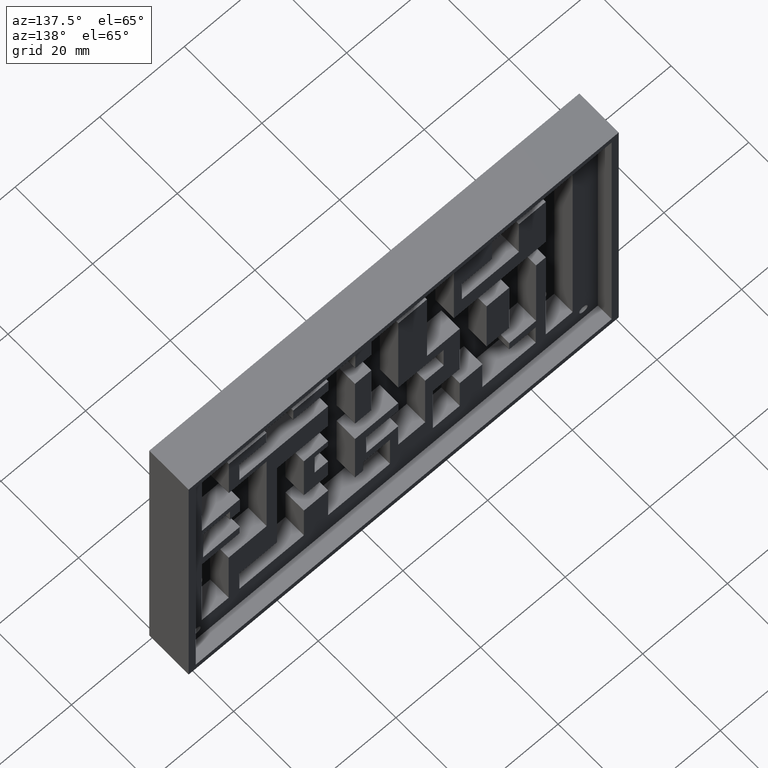
[diagram: clean part render]
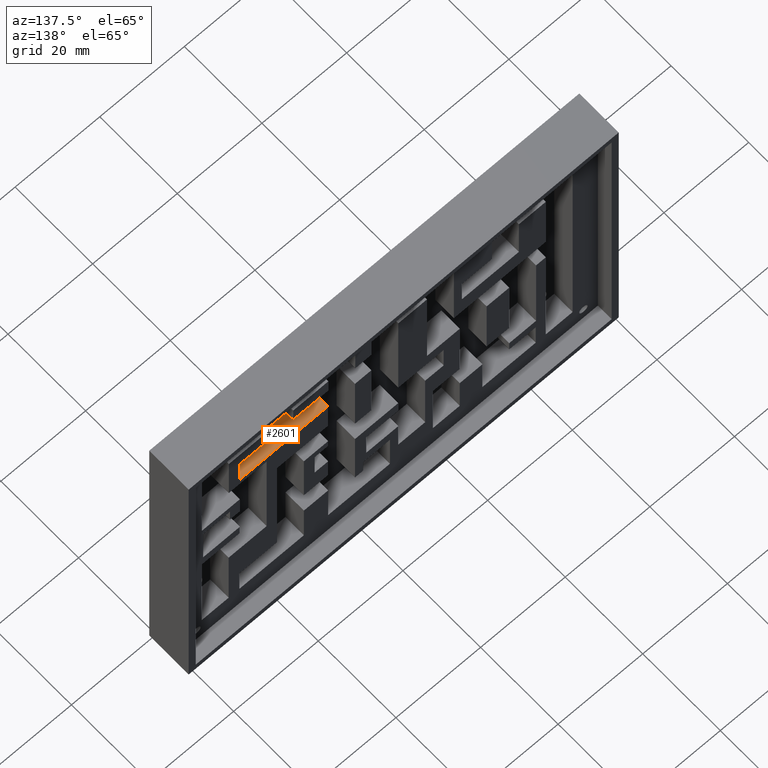
[diagram: same view with one face highlighted and labeled with its STEP entity id]
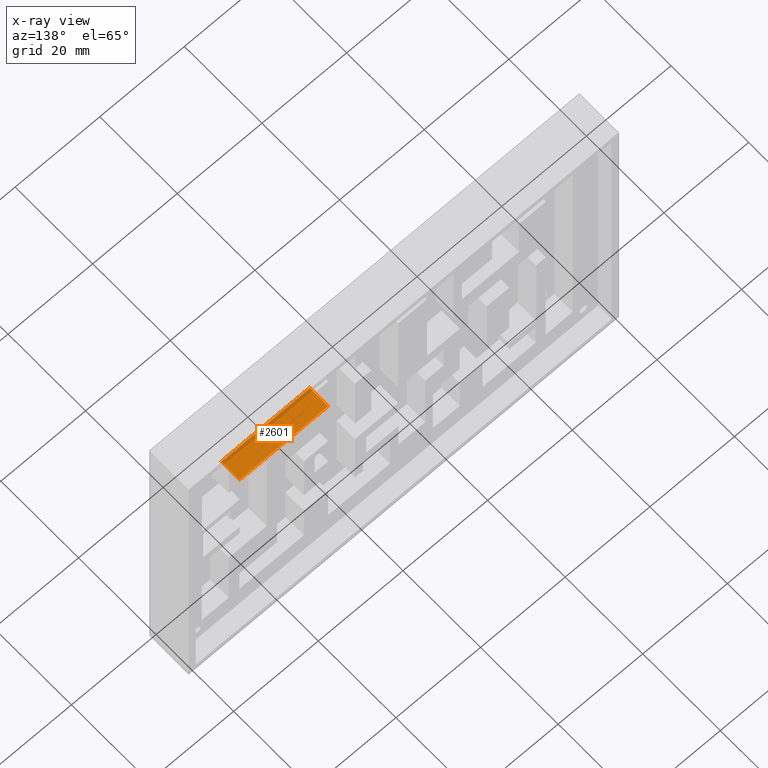
[diagram: x-ray of the same camera — body ghosted, the highlighted face saturated]
A machine part, auxiliary view. The second image highlights one B-rep face of the part: STEP entity #2601.
The next image is the same camera in x-ray: the body ghosted, the highlighted face saturated — about 16% of this face is hidden behind the body in this view.
In plain terms, the highlighted planar face has unit normal (0, 0, -1).
Its self-contained STEP definition (entity closure, byte-faithful):
#137=FACE_OUTER_BOUND('',#273,.T.);
#273=EDGE_LOOP('',(#1997,#1998,#1999,#2000));
#574=LINE('',#3983,#928);
#576=LINE('',#3987,#930);
#577=LINE('',#3989,#931);
#578=LINE('',#3990,#932);
#928=VECTOR('',#3262,0.393700787401575);
#930=VECTOR('',#3266,0.393700787401575);
#931=VECTOR('',#3267,0.393700787401575);
#932=VECTOR('',#3268,0.393700787401575);
#1209=VERTEX_POINT('',#3980);
#1210=VERTEX_POINT('',#3982);
#1211=VERTEX_POINT('',#3986);
#1212=VERTEX_POINT('',#3988);
#1538=EDGE_CURVE('',#1209,#1210,#574,.T.);
#1540=EDGE_CURVE('',#1211,#1209,#576,.T.);
#1541=EDGE_CURVE('',#1211,#1212,#577,.T.);
#1542=EDGE_CURVE('',#1212,#1210,#578,.T.);
#1997=ORIENTED_EDGE('',*,*,#1540,.F.);
#1998=ORIENTED_EDGE('',*,*,#1541,.T.);
#1999=ORIENTED_EDGE('',*,*,#1542,.T.);
#2000=ORIENTED_EDGE('',*,*,#1538,.F.);
#2465=PLANE('',#2763);
#2601=ADVANCED_FACE('',(#137),#2465,.F.);
#2763=AXIS2_PLACEMENT_3D('',#3985,#3264,#3265);
#3262=DIRECTION('',(0.,-1.,0.));
#3264=DIRECTION('center_axis',(0.,0.,-1.));
#3265=DIRECTION('ref_axis',(1.,0.,0.));
#3266=DIRECTION('',(1.,0.,0.));
#3267=DIRECTION('',(0.,-1.,0.));
#3268=DIRECTION('',(1.,0.,0.));
#3980=CARTESIAN_POINT('',(3.40000010850861,0.26,-0.932495663435515));
#3982=CARTESIAN_POINT('',(3.40000010850861,0.0725,-0.932495663435515));
#3983=CARTESIAN_POINT('',(3.40000010850861,0.26,-0.932495663435515));
#3985=CARTESIAN_POINT('Origin',(2.57444126043144,0.26,-0.932495663435515));
#3986=CARTESIAN_POINT('',(2.57444126043144,0.26,-0.932495663435515));
#3987=CARTESIAN_POINT('',(2.28722063021572,0.26,-0.932495663435515));
#3988=CARTESIAN_POINT('',(2.57444126043144,0.0725,-0.932495663435515));
#3989=CARTESIAN_POINT('',(2.57444126043144,0.26,-0.932495663435515));
#3990=CARTESIAN_POINT('',(2.7000000861686,0.0725,-0.932495663435515));